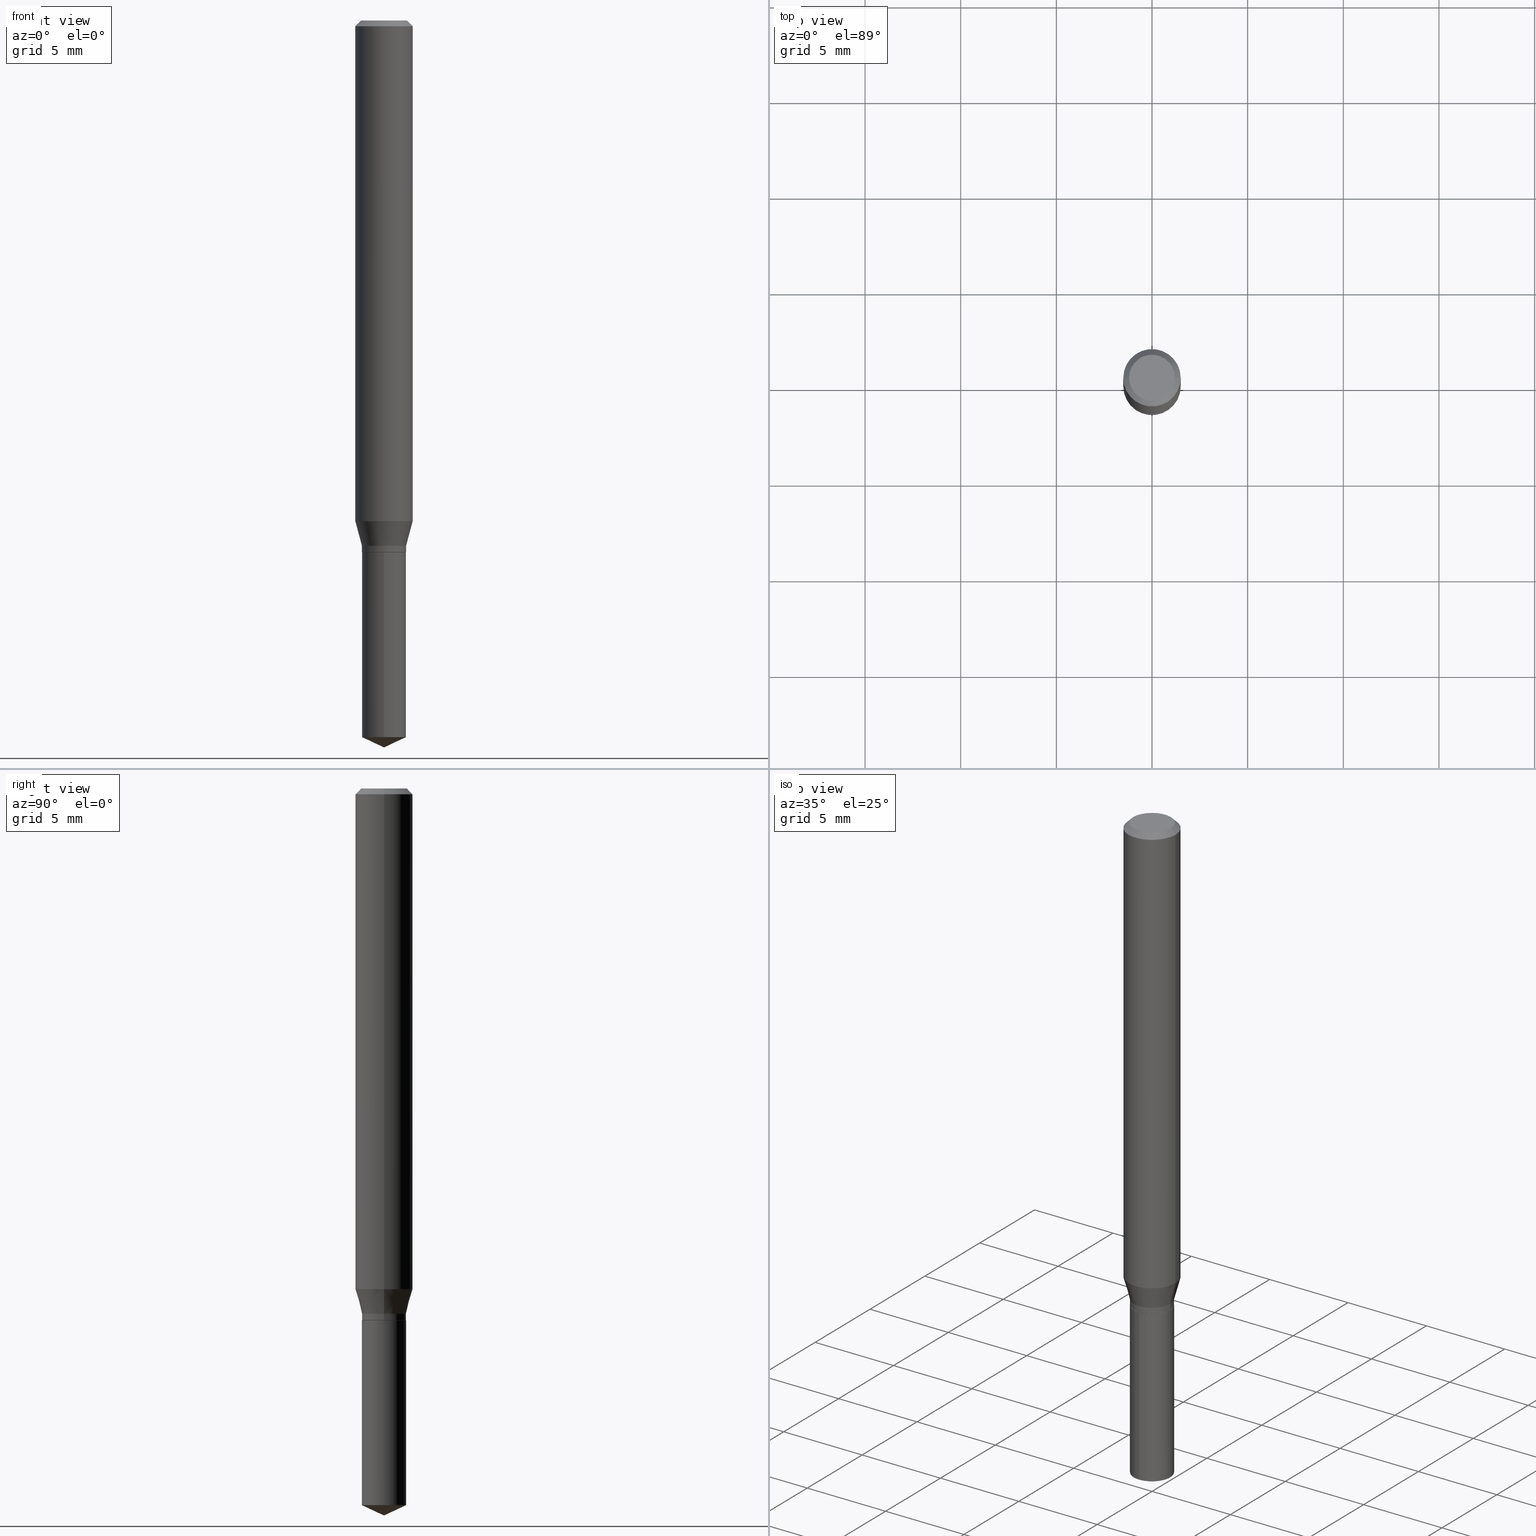
[diagram: canonical four-view strip — front | top / right | iso, engineering-drawing reading convention]
A machine part, canonical four-view strip (front | top / right | iso — engineering-drawing reading convention). The complete STEP part file that produces these views, byte-faithful:
ISO-10303-21;
HEADER;
FILE_DESCRIPTION (( 'STEP AP203' ),
    '1' );
FILE_NAME ('07638.STEP',
    '2024-04-24T00:11:10',
    ( '' ),
    ( '' ),
    'SwSTEP 2.0',
    'SolidWorks 2023',
    '' );
FILE_SCHEMA (( 'CONFIG_CONTROL_DESIGN' ));
ENDSEC;

DATA;
#1 = CARTESIAN_POINT ( 'NONE',  ( 0.04544999999999998347, -4.137056238395241663E-15, -1.093999999999999861 ) ) ;
#2 = CARTESIAN_POINT ( 'NONE',  ( -0.05905000000000011628, -3.177153447485933561E-15, -1.030144109017062881 ) ) ;
#3 = ORIENTED_EDGE ( 'NONE', *, *, #233, .F. ) ;
#4 = APPROVAL_ROLE ( '' ) ;
#5 = CARTESIAN_POINT ( 'NONE',  ( -3.173756537008140153E-16, -0.04545000000000382068, -1.094499999999999806 ) ) ;
#6 = APPLICATION_CONTEXT ( 'configuration controlled 3d designs of mechanical parts and assemblies' ) ;
#7 = DATE_AND_TIME ( #42, #314 ) ;
#8 = EDGE_LOOP ( 'NONE', ( #336, #149, #215, #461 ) ) ;
#9 = VECTOR ( 'NONE', #386, 39.37007874015747433 ) ;
#10 = CYLINDRICAL_SURFACE ( 'NONE', #53, 0.05905000000000006077 ) ;
#11 = AXIS2_PLACEMENT_3D ( 'NONE', #29, #37, #184 ) ;
#12 = ADVANCED_FACE ( 'NONE', ( #33 ), #471, .T. ) ;
#13 = CARTESIAN_POINT ( 'NONE',  ( 0.05905000000000011628, -4.009072879069648763E-15, -1.030144109017062881 ) ) ;
#14 = ORIENTED_EDGE ( 'NONE', *, *, #414, .F. ) ;
#15 = CARTESIAN_POINT ( 'NONE',  ( 0.05904999999999999832, -4.535783407291118600E-16, -0.01181000000000007738 ) ) ;
#16 = DIRECTION ( 'NONE',  ( 1.000000000000000000, -6.982962677686266711E-15, 0.000000000000000000 ) ) ;
#17 = EDGE_CURVE ( 'NONE', #441, #20, #75, .T. ) ;
#18 = DIRECTION ( 'NONE',  ( 2.445468806185136597E-29, -3.491481338843145583E-15, -1.000000000000000000 ) ) ;
#19 = AXIS2_PLACEMENT_3D ( 'NONE', #304, #379, #269 ) ;
#20 = VERTEX_POINT ( 'NONE', #123 ) ;
#21 = ADVANCED_FACE ( 'NONE', ( #421 ), #127, .T. ) ;
#22 = ORIENTED_EDGE ( 'NONE', *, *, #233, .T. ) ;
#23 = DIRECTION ( 'NONE',  ( -6.982962677686265133E-15, -1.000000000000000000, 3.005333326363326041E-15 ) ) ;
#24 = EDGE_LOOP ( 'NONE', ( #367, #253, #290, #362 ) ) ;
#25 = CARTESIAN_POINT ( 'NONE',  ( 2.676565608369631794E-29, -3.821426325363822773E-15, -1.094499999999999806 ) ) ;
#26 = AXIS2_PLACEMENT_3D ( 'NONE', #395, #356, #134 ) ;
#27 = ORIENTED_EDGE ( 'NONE', *, *, #445, .F. ) ;
#28 = CIRCLE ( 'NONE', #43, 0.04724000000000000421 ) ;
#29 = CARTESIAN_POINT ( 'NONE',  ( -9.261924752013118283E-28, 1.322368428517963298E-13, 37.87397874015748300 ) ) ;
#30 = PRODUCT_DEFINITION_SHAPE ( 'NONE', 'NONE',  #81 ) ;
#31 = ORIENTED_EDGE ( 'NONE', *, *, #112, .F. ) ;
#32 = ORIENTED_EDGE ( 'NONE', *, *, #247, .F. ) ;
#33 = FACE_OUTER_BOUND ( 'NONE', #416, .T. ) ;
#34 = AXIS2_PLACEMENT_3D ( 'NONE', #485, #301, #447 ) ;
#35 = CIRCLE ( 'NONE', #467, 0.04544999999999999735 ) ;
#36 = DIRECTION ( 'NONE',  ( 1.000000000000000000, -6.982962677686265922E-15, 0.000000000000000000 ) ) ;
#37 = DIRECTION ( 'NONE',  ( -2.445458899330790108E-29, 3.491495526022433205E-15, 1.000000000000000000 ) ) ;
#38 = DIRECTION ( 'NONE',  ( 6.982962677686265922E-15, 1.000000000000000000, -3.491495526022433599E-15 ) ) ;
#39 = DIRECTION ( 'NONE',  ( -6.982962677686265133E-15, -1.000000000000000000, 6.010666652726652082E-15 ) ) ;
#40 = CARTESIAN_POINT ( 'NONE',  ( -0.04544999999999998347, -3.473869708522012529E-15, -1.093999999999999861 ) ) ;
#41 = ADVANCED_FACE ( 'NONE', ( #444 ), #265, .T. ) ;
#42 = CALENDAR_DATE ( 2024, 23, 4 ) ;
#43 = AXIS2_PLACEMENT_3D ( 'NONE', #439, #331, #227 ) ;
#44 = PERSON ( 'UNSPECIFIED', 'UNSPECIFIED', 'UNSPECIFIED', ('UNSPECIFIED'), ('UNSPECIFIED'), ('UNSPECIFIED') ) ;
#45 = DIRECTION ( 'NONE',  ( 1.000000000000000000, -6.982962677686271444E-15, 0.000000000000000000 ) ) ;
#46 = PERSON_AND_ORGANIZATION ( #44, #354 ) ;
#47 = DIRECTION ( 'NONE',  ( -6.982962677686266711E-15, -1.000000000000000000, 3.520397390770446770E-15 ) ) ;
#48 = DATE_AND_TIME ( #387, #102 ) ;
#49 = CARTESIAN_POINT ( 'NONE',  ( -3.173756537008046476E-16, -0.04545000000000514601, -1.474906316936855033 ) ) ;
#50 = EDGE_CURVE ( 'NONE', #326, #310, #270, .T. ) ;
#51 = DIRECTION ( 'NONE',  ( -1.000000000000000000, 6.982962677686266711E-15, 0.000000000000000000 ) ) ;
#52 = AXIS2_PLACEMENT_3D ( 'NONE', #260, #408, #67 ) ;
#53 = AXIS2_PLACEMENT_3D ( 'NONE', #239, #394, #94 ) ;
#54 = CYLINDRICAL_SURFACE ( 'NONE', #128, 0.04544999999999996959 ) ;
#55 = PERSON_AND_ORGANIZATION_ROLE ( 'design_owner' ) ;
#56 = DIRECTION ( 'NONE',  ( 1.000000000000000000, -6.982962677686271444E-15, 0.000000000000000000 ) ) ;
#57 = ORIENTED_EDGE ( 'NONE', *, *, #335, .T. ) ;
#58 = AXIS2_PLACEMENT_3D ( 'NONE', #210, #429, #313 ) ;
#59 = AXIS2_PLACEMENT_3D ( 'NONE', #411, #340, #155 ) ;
#60 = ORIENTED_EDGE ( 'NONE', *, *, #115, .T. ) ;
#61 = VERTEX_POINT ( 'NONE', #341 ) ;
#62 = ORIENTED_EDGE ( 'NONE', *, *, #222, .F. ) ;
#63 = CARTESIAN_POINT ( 'NONE',  ( 0.000000000000000000, 0.000000000000000000, 0.000000000000000000 ) ) ;
#64 = ORIENTED_EDGE ( 'NONE', *, *, #297, .T. ) ;
#65 = APPROVAL_PERSON_ORGANIZATION ( #460, #355, #234 ) ;
#66 = ORIENTED_EDGE ( 'NONE', *, *, #258, .T. ) ;
#67 = DIRECTION ( 'NONE',  ( -6.982962677686265133E-15, -1.000000000000000000, 3.005333326363326041E-15 ) ) ;
#68 = ADVANCED_FACE ( 'NONE', ( #114 ), #162, .T. ) ;
#69 = CYLINDRICAL_SURFACE ( 'NONE', #306, 0.05905000000000006077 ) ;
#70 = DIRECTION ( 'NONE',  ( 2.445458899330789267E-29, -3.491495526022433599E-15, -1.000000000000000000 ) ) ;
#71 = VECTOR ( 'NONE', #307, 39.37007874015748143 ) ;
#72 = DIRECTION ( 'NONE',  ( -0.2588190451025214611, 5.211531920934551042E-15, 0.9659258262890682012 ) ) ;
#73 = CIRCLE ( 'NONE', #365, 0.04544999999999999735 ) ;
#74 = CC_DESIGN_PERSON_AND_ORGANIZATION_ASSIGNMENT ( #46, #311, ( #119 ) ) ;
#75 = LINE ( 'NONE', #452, #175 ) ;
#76 = LINE ( 'NONE', #446, #360 ) ;
#77 = CARTESIAN_POINT ( 'NONE',  ( 0.05904999999999999832, -4.463468013801467941E-16, -0.01181000000000007738 ) ) ;
#78 = EDGE_CURVE ( 'NONE', #441, #322, #211, .T. ) ;
#79 = DIRECTION ( 'NONE',  ( -2.445468806185136877E-29, 3.491481338843145188E-15, 1.000000000000000000 ) ) ;
#80 = APPROVAL_DATE_TIME ( #83, #216 ) ;
#81 = PRODUCT_DEFINITION ( 'UNKNOWN', '', #119, #99 ) ;
#82 = ORIENTED_EDGE ( 'NONE', *, *, #376, .F. ) ;
#83 = DATE_AND_TIME ( #420, #176 ) ;
#84 = AXIS2_PLACEMENT_3D ( 'NONE', #194, #377, #191 ) ;
#85 = VECTOR ( 'NONE', #264, 39.37007874015748143 ) ;
#86 = FACE_OUTER_BOUND ( 'NONE', #183, .T. ) ;
#87 = CARTESIAN_POINT ( 'NONE',  ( 2.888098660104665518E-31, -4.123439461173782112E-17, -0.01181000000000007738 ) ) ;
#88 = COORDINATED_UNIVERSAL_TIME_OFFSET ( 5, 0, .BEHIND. ) ;
#89 = CARTESIAN_POINT ( 'NONE',  ( 2.888098660104665518E-31, -4.123439461173782112E-17, -0.01181000000000007738 ) ) ;
#90 = DIRECTION ( 'NONE',  ( 2.438088387897960049E-29, -3.491481338843145188E-15, -1.000000000000000000 ) ) ;
#91 = AXIS2_PLACEMENT_3D ( 'NONE', #125, #165, #56 ) ;
#92 = AXIS2_PLACEMENT_3D ( 'NONE', #192, #478, #363 ) ;
#93 = FACE_OUTER_BOUND ( 'NONE', #179, .T. ) ;
#94 = DIRECTION ( 'NONE',  ( 1.000000000000000000, -6.982962677686266711E-15, 4.876176775795935793E-29 ) ) ;
#95 = ORIENTED_EDGE ( 'NONE', *, *, #78, .F. ) ;
#96 = CARTESIAN_POINT ( 'NONE',  ( 2.519185284476607482E-29, -3.596728932952273843E-15, -1.030144109017062881 ) ) ;
#97 = EDGE_CURVE ( 'NONE', #293, #61, #256, .T. ) ;
#98 = VERTEX_POINT ( 'NONE', #40 ) ;
#99 = DESIGN_CONTEXT ( 'detailed design', #6, 'design' ) ;
#100 =( LENGTH_UNIT ( ) NAMED_UNIT ( * ) SI_UNIT ( $, .METRE. ) );
#101 = AXIS2_PLACEMENT_3D ( 'NONE', #89, #18, #51 ) ;
#102 = LOCAL_TIME ( 20, 11, 10.00000000000000000, #126 ) ;
#103 = ORIENTED_EDGE ( 'NONE', *, *, #50, .T. ) ;
#104 = ADVANCED_FACE ( 'NONE', ( #483 ), #262, .F. ) ;
#105 = ORIENTED_EDGE ( 'NONE', *, *, #273, .F. ) ;
#106 =( NAMED_UNIT ( * ) PLANE_ANGLE_UNIT ( ) SI_UNIT ( $, .RADIAN. ) );
#107 = ADVANCED_FACE ( 'NONE', ( #224 ), #374, .T. ) ;
#108 = ORIENTED_EDGE ( 'NONE', *, *, #424, .T. ) ;
#109 = AXIS2_PLACEMENT_3D ( 'NONE', #267, #230, #45 ) ;
#110 = EDGE_LOOP ( 'NONE', ( #328, #396, #438, #468 ) ) ;
#111 = AXIS2_PLACEMENT_3D ( 'NONE', #225, #375, #141 ) ;
#112 = EDGE_CURVE ( 'NONE', #98, #133, #181, .T. ) ;
#113 = ORIENTED_EDGE ( 'NONE', *, *, #97, .F. ) ;
#114 = FACE_OUTER_BOUND ( 'NONE', #443, .T. ) ;
#115 = EDGE_CURVE ( 'NONE', #287, #20, #195, .T. ) ;
#116 = DIRECTION ( 'NONE',  ( 6.439704144417031142E-15, 0.9063077870366524902, 0.4226182617406940567 ) ) ;
#117 = EDGE_LOOP ( 'NONE', ( #361, #358 ) ) ;
#118 = CARTESIAN_POINT ( 'NONE',  ( 2.676565608369631794E-29, -3.821426325363822773E-15, -1.094499999999999806 ) ) ;
#119 = PRODUCT_DEFINITION_FORMATION_WITH_SPECIFIED_SOURCE ( 'ANY', '', #186, .NOT_KNOWN. ) ;
#120 = CARTESIAN_POINT ( 'NONE',  ( 0.04724000000000000421, -3.852183633974369838E-16, -3.380025165621689721E-19 ) ) ;
#121 = CARTESIAN_POINT ( 'NONE',  ( 0.05905000000000006077, -4.123439461173744764E-16, 2.879382386107503023E-30 ) ) ;
#122 = APPROVAL_DATE_TIME ( #7, #355 ) ;
#123 = CARTESIAN_POINT ( 'NONE',  ( -0.05904999999999999832, -1.399406178315665504E-15, -0.01181000000000007738 ) ) ;
#124 = DATE_AND_TIME ( #309, #266 ) ;
#125 = CARTESIAN_POINT ( 'NONE',  ( 2.676565608369631794E-29, -3.821426325363822773E-15, -1.094499999999999806 ) ) ;
#126 = COORDINATED_UNIVERSAL_TIME_OFFSET ( 5, 0, .BEHIND. ) ;
#127 = CONICAL_SURFACE ( 'NONE', #109, 0.04494999999999999690, 0.7853981633973970977 ) ;
#128 = AXIS2_PLACEMENT_3D ( 'NONE', #357, #170, #317 ) ;
#129 = CC_DESIGN_APPROVAL ( #355, ( #81 ) ) ;
#130 = DIRECTION ( 'NONE',  ( -2.445468806185136877E-29, 3.491481338843145188E-15, 1.000000000000000000 ) ) ;
#131 = EDGE_CURVE ( 'NONE', #153, #350, #451, .T. ) ;
#132 = APPLICATION_PROTOCOL_DEFINITION ( 'international standard', 'config_control_design', 1994, #6 ) ;
#133 = VERTEX_POINT ( 'NONE', #1 ) ;
#134 = DIRECTION ( 'NONE',  ( 1.000000000000000000, -6.982962677686271444E-15, 0.000000000000000000 ) ) ;
#135 = CC_DESIGN_PERSON_AND_ORGANIZATION_ASSIGNMENT ( #464, #166, ( #235 ) ) ;
#136 = FACE_OUTER_BOUND ( 'NONE', #110, .T. ) ;
#137 = VECTOR ( 'NONE', #277, 39.37007874015748143 ) ;
#138 = FACE_OUTER_BOUND ( 'NONE', #246, .T. ) ;
#139 = EDGE_CURVE ( 'NONE', #293, #98, #160, .T. ) ;
#140 = ORIENTED_EDGE ( 'NONE', *, *, #279, .T. ) ;
#141 = DIRECTION ( 'NONE',  ( 1.000000000000000000, -6.982962677686266711E-15, 0.000000000000000000 ) ) ;
#142 = EDGE_LOOP ( 'NONE', ( #82, #217, #66, #27 ) ) ;
#143 = CC_DESIGN_DATE_AND_TIME_ASSIGNMENT ( #271, #242, ( #81 ) ) ;
#144 = CARTESIAN_POINT ( 'NONE',  ( 2.676565608369631794E-29, -3.821426325363822773E-15, -1.094499999999999806 ) ) ;
#145 = ORIENTED_EDGE ( 'NONE', *, *, #297, .F. ) ;
#146 = DIRECTION ( 'NONE',  ( -2.445468806185136877E-29, 3.491481338843145188E-15, 1.000000000000000000 ) ) ;
#147 = EDGE_LOOP ( 'NONE', ( #145, #95, #476, #296 ) ) ;
#148 = VECTOR ( 'NONE', #369, 39.37007874015748143 ) ;
#149 = ORIENTED_EDGE ( 'NONE', *, *, #139, .T. ) ;
#150 = AXIS2_PLACEMENT_3D ( 'NONE', #373, #337, #484 ) ;
#151 = DIRECTION ( 'NONE',  ( -2.445468806185136597E-29, 3.491481338843145583E-15, 1.000000000000000000 ) ) ;
#152 = CARTESIAN_POINT ( 'NONE',  ( -0.04494999999999999690, -3.499388138465546216E-15, -1.094499999999999806 ) ) ;
#153 = VERTEX_POINT ( 'NONE', #13 ) ;
#154 = ADVANCED_FACE ( 'NONE', ( #209 ), #305, .T. ) ;
#155 = DIRECTION ( 'NONE',  ( 1.000000000000000000, -6.982962677686265922E-15, 0.000000000000000000 ) ) ;
#156 = DIRECTION ( 'NONE',  ( -2.445468806185136597E-29, 3.491481338843145583E-15, 1.000000000000000000 ) ) ;
#157 = AXIS2_PLACEMENT_3D ( 'NONE', #487, #156, #345 ) ;
#158 = PERSON_AND_ORGANIZATION ( #44, #354 ) ;
#159 = CIRCLE ( 'NONE', #59, 0.04544999999999996959 ) ;
#160 = LINE ( 'NONE', #381, #481 ) ;
#161 = APPROVAL_STATUS ( 'not_yet_approved' ) ;
#162 = CYLINDRICAL_SURFACE ( 'NONE', #52, 0.04544999999999999735 ) ;
#163 = APPROVAL_STATUS ( 'not_yet_approved' ) ;
#164 = EDGE_CURVE ( 'NONE', #347, #326, #431, .T. ) ;
#165 = DIRECTION ( 'NONE',  ( -2.445468806185136597E-29, 3.491481338843145583E-15, 1.000000000000000000 ) ) ;
#166 = PERSON_AND_ORGANIZATION_ROLE ( 'classification_officer' ) ;
#167 = AXIS2_PLACEMENT_3D ( 'NONE', #282, #90, #172 ) ;
#168 = CC_DESIGN_SECURITY_CLASSIFICATION ( #235, ( #119 ) ) ;
#169 = EDGE_CURVE ( 'NONE', #20, #350, #334, .T. ) ;
#170 = DIRECTION ( 'NONE',  ( -2.445468806185136597E-29, 3.491481338843145583E-15, 1.000000000000000000 ) ) ;
#171 = COORDINATED_UNIVERSAL_TIME_OFFSET ( 5, 0, .BEHIND. ) ;
#172 = DIRECTION ( 'NONE',  ( -1.000000000000000000, 6.982962677686265922E-15, -4.876176775795935793E-29 ) ) ;
#173 = ADVANCED_FACE ( 'NONE', ( #432 ), #244, .F. ) ;
#174 = LINE ( 'NONE', #5, #288 ) ;
#175 = VECTOR ( 'NONE', #229, 39.37007874015748143 ) ;
#176 = LOCAL_TIME ( 20, 11, 10.00000000000000000, #88 ) ;
#177 = ORIENTED_EDGE ( 'NONE', *, *, #445, .T. ) ;
#178 = ADVANCED_FACE ( 'NONE', ( #136 ), #54, .T. ) ;
#179 = EDGE_LOOP ( 'NONE', ( #14, #64, #479, #259 ) ) ;
#180 =( CONVERSION_BASED_UNIT ( 'INCH', #213 ) LENGTH_UNIT ( ) NAMED_UNIT ( #236 ) );
#181 = CIRCLE ( 'NONE', #157, 0.04544999999999998347 ) ;
#182 = APPLICATION_CONTEXT ( 'configuration controlled 3d designs of mechanical parts and assemblies' ) ;
#183 = EDGE_LOOP ( 'NONE', ( #473, #57, #219, #470 ) ) ;
#184 = DIRECTION ( 'NONE',  ( -6.982962677686266711E-15, -1.000000000000000000, 3.520397390770446770E-15 ) ) ;
#185 = ORIENTED_EDGE ( 'NONE', *, *, #458, .F. ) ;
#186 = PRODUCT ( '07638', '07638', '', ( #348 ) ) ;
#187 = ORIENTED_EDGE ( 'NONE', *, *, #380, .T. ) ;
#188 = APPROVAL_PERSON_ORGANIZATION ( #393, #216, #4 ) ;
#189 = DIRECTION ( 'NONE',  ( -2.445468806185136597E-29, 3.491481338843145583E-15, 1.000000000000000000 ) ) ;
#190 = LOCAL_TIME ( 20, 11, 10.00000000000000000, #315 ) ;
#191 = DIRECTION ( 'NONE',  ( 1.000000000000000000, -6.982962677686271444E-15, 0.000000000000000000 ) ) ;
#192 = CARTESIAN_POINT ( 'NONE',  ( 2.643307232605514096E-29, -3.773942179155556299E-15, -1.080899999999999972 ) ) ;
#193 = APPROVAL ( #319, 'UNSPECIFIED' ) ;
#194 = CARTESIAN_POINT ( 'NONE',  ( 2.676565608369631794E-29, -3.821426325363822773E-15, -1.094499999999999806 ) ) ;
#195 = LINE ( 'NONE', #419, #71 ) ;
#196 = AXIS2_PLACEMENT_3D ( 'NONE', #284, #274, #47 ) ;
#197 = DIRECTION ( 'NONE',  ( 0.000000000000000000, 0.000000000000000000, 1.000000000000000000 ) ) ;
#198 = DIRECTION ( 'NONE',  ( -2.445468806185136597E-29, 3.491481338843145583E-15, 1.000000000000000000 ) ) ;
#199 = DIRECTION ( 'NONE',  ( -2.445468806185136597E-29, 3.491481338843145583E-15, 1.000000000000000000 ) ) ;
#200 = DIRECTION ( 'NONE',  ( 1.000000000000000000, 0.000000000000000000, 0.000000000000000000 ) ) ;
#201 = ADVANCED_FACE ( 'NONE', ( #93 ), #312, .T. ) ;
#202 = CARTESIAN_POINT ( 'NONE',  ( 2.888098660104665518E-31, -4.123439461173782112E-17, -0.01181000000000007738 ) ) ;
#203 = DATE_TIME_ROLE ( 'classification_date' ) ;
#204 = ORIENTED_EDGE ( 'NONE', *, *, #97, .T. ) ;
#205 = CC_DESIGN_DATE_AND_TIME_ASSIGNMENT ( #124, #203, ( #235 ) ) ;
#206 = CARTESIAN_POINT ( 'NONE',  ( 3.658651059288795076E-29, -5.223626456482161457E-15, -1.496099999999999985 ) ) ;
#207 = SECURITY_CLASSIFICATION_LEVEL ( 'unclassified' ) ;
#208 = CIRCLE ( 'NONE', #329, 0.05904999999999999832 ) ;
#209 = FACE_OUTER_BOUND ( 'NONE', #8, .T. ) ;
#210 = CARTESIAN_POINT ( 'NONE',  ( 3.606833621484513681E-29, -5.149613279019524657E-15, -1.474906316936855477 ) ) ;
#211 = CIRCLE ( 'NONE', #232, 0.04724000000000000421 ) ;
#212 = ORIENTED_EDGE ( 'NONE', *, *, #380, .F. ) ;
#213 = LENGTH_MEASURE_WITH_UNIT ( LENGTH_MEASURE( 0.02539999999999999897 ), #100 );
#214 = EDGE_CURVE ( 'NONE', #480, #347, #463, .T. ) ;
#215 = ORIENTED_EDGE ( 'NONE', *, *, #291, .F. ) ;
#216 = APPROVAL ( #161, 'UNSPECIFIED' ) ;
#217 = ORIENTED_EDGE ( 'NONE', *, *, #112, .T. ) ;
#218 = CARTESIAN_POINT ( 'NONE',  ( -0.04724000000000000421, 3.504923541997677355E-16, -3.380025165670481712E-19 ) ) ;
#219 = ORIENTED_EDGE ( 'NONE', *, *, #131, .T. ) ;
#220 = ORIENTED_EDGE ( 'NONE', *, *, #131, .F. ) ;
#221 = DIRECTION ( 'NONE',  ( 1.000000000000000000, -6.982962677686265922E-15, 0.000000000000000000 ) ) ;
#222 = EDGE_CURVE ( 'NONE', #61, #293, #223, .T. ) ;
#223 = CIRCLE ( 'NONE', #26, 0.04494999999999999690 ) ;
#224 = FACE_OUTER_BOUND ( 'NONE', #142, .T. ) ;
#225 = CARTESIAN_POINT ( 'NONE',  ( 2.519185284476607482E-29, -3.596728932952273843E-15, -1.030144109017062881 ) ) ;
#226 = CARTESIAN_POINT ( 'NONE',  ( 8.265746106709734507E-48, -1.180129479067563789E-33, -3.380025165646692144E-19 ) ) ;
#227 = DIRECTION ( 'NONE',  ( 1.000000000000000000, -6.982962677686266711E-15, 4.876185090822587894E-29 ) ) ;
#228 = CARTESIAN_POINT ( 'NONE',  ( 3.229416734030016060E-16, 0.04544999999999484175, -1.474906316936855699 ) ) ;
#229 = DIRECTION ( 'NONE',  ( -0.7071067811865451302, 2.468850131082231817E-15, -0.7071067811865499042 ) ) ;
#230 = DIRECTION ( 'NONE',  ( -2.445468806185136597E-29, 3.491481338843145583E-15, 1.000000000000000000 ) ) ;
#231 = ADVANCED_BREP_SHAPE_REPRESENTATION ( '07638', ( #261, #412, #283 ), #382 ) ;
#232 = AXIS2_PLACEMENT_3D ( 'NONE', #226, #189, #339 ) ;
#233 = EDGE_CURVE ( 'NONE', #330, #153, #280, .T. ) ;
#234 = APPROVAL_ROLE ( '' ) ;
#235 = SECURITY_CLASSIFICATION ( '', '', #207 ) ;
#236 = DIMENSIONAL_EXPONENTS ( 1.000000000000000000, 0.000000000000000000, 0.000000000000000000, 0.000000000000000000, 0.000000000000000000, 0.000000000000000000, 0.000000000000000000 ) ;
#237 = DIRECTION ( 'NONE',  ( -2.445458899330790108E-29, 3.491495526022433599E-15, 1.000000000000000000 ) ) ;
#238 = PERSON_AND_ORGANIZATION_ROLE ( 'creator' ) ;
#239 = CARTESIAN_POINT ( 'NONE',  ( 0.000000000000000000, 0.000000000000000000, 0.000000000000000000 ) ) ;
#240 = DIRECTION ( 'NONE',  ( -2.445458899330790108E-29, 3.491495526022433205E-15, 1.000000000000000000 ) ) ;
#241 = CYLINDRICAL_SURFACE ( 'NONE', #406, 0.04544999999999999735 ) ;
#242 = DATE_TIME_ROLE ( 'creation_date' ) ;
#243 = CARTESIAN_POINT ( 'NONE',  ( 0.04544999999999996959, -4.091317832856396691E-15, -1.080899999999999972 ) ) ;
#244 = PLANE ( 'NONE',  #167 ) ;
#245 = ORIENTED_EDGE ( 'NONE', *, *, #469, .F. ) ;
#246 = EDGE_LOOP ( 'NONE', ( #316, #454, #245 ) ) ;
#247 = EDGE_CURVE ( 'NONE', #347, #364, #174, .T. ) ;
#248 = AXIS2_PLACEMENT_3D ( 'NONE', #410, #70, #38 ) ;
#249 = APPROVAL_PERSON_ORGANIZATION ( #158, #193, #455 ) ;
#250 = PLANE ( 'NONE',  #482 ) ;
#251 = ORIENTED_EDGE ( 'NONE', *, *, #351, .T. ) ;
#252 = ADVANCED_FACE ( 'NONE', ( #323 ), #241, .T. ) ;
#253 = ORIENTED_EDGE ( 'NONE', *, *, #469, .T. ) ;
#254 = ADVANCED_FACE ( 'NONE', ( #138 ), #489, .T. ) ;
#255 = ORIENTED_EDGE ( 'NONE', *, *, #477, .T. ) ;
#256 = CIRCLE ( 'NONE', #84, 0.04494999999999999690 ) ;
#257 = CIRCLE ( 'NONE', #150, 0.04544999999999998347 ) ;
#258 = EDGE_CURVE ( 'NONE', #133, #330, #423, .T. ) ;
#259 = ORIENTED_EDGE ( 'NONE', *, *, #17, .F. ) ;
#260 = CARTESIAN_POINT ( 'NONE',  ( 2.676565608369631794E-29, -3.821426325363822773E-15, -1.094499999999999806 ) ) ;
#261 = MANIFOLD_SOLID_BREP ( 'Body-Move/Copy2[1]', #352 ) ;
#262 = PLANE ( 'NONE',  #248 ) ;
#263 = CARTESIAN_POINT ( 'NONE',  ( 3.606833621484513681E-29, -5.149613279019524657E-15, -1.474906316936855477 ) ) ;
#264 = DIRECTION ( 'NONE',  ( 0.7071067811865451302, -7.319954787623248157E-15, -0.7071067811865499042 ) ) ;
#265 = CONICAL_SURFACE ( 'NONE', #422, 0.04544999999999996959, 0.2617993877991501295 ) ;
#266 = LOCAL_TIME ( 20, 11, 10.00000000000000000, #425 ) ;
#267 = CARTESIAN_POINT ( 'NONE',  ( 2.676565608369631794E-29, -3.821426325363822773E-15, -1.094499999999999806 ) ) ;
#268 = DIRECTION ( 'NONE',  ( -2.445458899330790108E-29, 3.491495526022433205E-15, 1.000000000000000000 ) ) ;
#269 = DIRECTION ( 'NONE',  ( -1.000000000000000000, 6.982962677686266711E-15, 0.000000000000000000 ) ) ;
#270 = LINE ( 'NONE', #298, #148 ) ;
#271 = DATE_AND_TIME ( #453, #190 ) ;
#272 = CARTESIAN_POINT ( 'NONE',  ( 2.643307232605514096E-29, -3.773942179155556299E-15, -1.080899999999999972 ) ) ;
#273 = EDGE_CURVE ( 'NONE', #350, #20, #208, .T. ) ;
#274 = DIRECTION ( 'NONE',  ( -2.445458899330790108E-29, 3.491495526022433205E-15, 1.000000000000000000 ) ) ;
#275 = SHAPE_DEFINITION_REPRESENTATION ( #30, #231 ) ;
#276 = VECTOR ( 'NONE', #116, 39.37007874015748143 ) ;
#277 = DIRECTION ( 'NONE',  ( 0.7071067811865112684, -2.468850131081876830E-15, 0.7071067811865837660 ) ) ;
#278 = DIRECTION ( 'NONE',  ( -2.445468806185136597E-29, 3.491481338843145583E-15, 1.000000000000000000 ) ) ;
#279 = EDGE_CURVE ( 'NONE', #61, #133, #389, .T. ) ;
#280 = LINE ( 'NONE', #349, #9 ) ;
#281 = PERSON_AND_ORGANIZATION_ROLE ( 'design_supplier' ) ;
#282 = CARTESIAN_POINT ( 'NONE',  ( 4.132873053354867254E-48, -5.900647395337818946E-34, -1.690012582823346072E-19 ) ) ;
#283 = AXIS2_PLACEMENT_3D ( 'NONE', #63, #197, #200 ) ;
#284 = CARTESIAN_POINT ( 'NONE',  ( -9.261924752013118283E-28, 1.322368428517963298E-13, 37.87397874015748300 ) ) ;
#285 = FACE_OUTER_BOUND ( 'NONE', #368, .T. ) ;
#286 = ADVANCED_FACE ( 'NONE', ( #86 ), #69, .T. ) ;
#287 = VERTEX_POINT ( 'NONE', #2 ) ;
#288 = VECTOR ( 'NONE', #237, 39.37007874015748143 ) ;
#289 = LINE ( 'NONE', #475, #276 ) ;
#290 = ORIENTED_EDGE ( 'NONE', *, *, #247, .T. ) ;
#291 = EDGE_CURVE ( 'NONE', #133, #98, #257, .T. ) ;
#292 = EDGE_LOOP ( 'NONE', ( #440, #401 ) ) ;
#293 = VERTEX_POINT ( 'NONE', #152 ) ;
#294 = CLOSED_SHELL ( 'NONE', ( #154, #201, #342, #12, #178, #107, #41, #286, #302, #173, #371, #21 ) ) ;
#295 = CIRCLE ( 'NONE', #437, 0.05905000000000011628 ) ;
#296 = ORIENTED_EDGE ( 'NONE', *, *, #169, .T. ) ;
#297 = EDGE_CURVE ( 'NONE', #322, #350, #300, .T. ) ;
#298 = CARTESIAN_POINT ( 'NONE',  ( 3.229416734029921890E-16, 0.04544999999999617402, -1.094500000000000028 ) ) ;
#299 = DIRECTION ( 'NONE',  ( -2.438088387897960049E-29, 3.491481338843145188E-15, 1.000000000000000000 ) ) ;
#300 = LINE ( 'NONE', #77, #85 ) ;
#301 = DIRECTION ( 'NONE',  ( -2.445468806185136597E-29, 3.491481338843145583E-15, 1.000000000000000000 ) ) ;
#302 = ADVANCED_FACE ( 'NONE', ( #415 ), #457, .T. ) ;
#303 = CARTESIAN_POINT ( 'NONE',  ( 3.658651059288794515E-29, -5.223626456482161457E-15, -1.496099999999999985 ) ) ;
#304 = CARTESIAN_POINT ( 'NONE',  ( 2.888098660104665518E-31, -4.123439461173782112E-17, -0.01181000000000007738 ) ) ;
#305 = CONICAL_SURFACE ( 'NONE', #91, 0.04494999999999999690, 0.7853981633973970977 ) ;
#306 = AXIS2_PLACEMENT_3D ( 'NONE', #490, #198, #418 ) ;
#307 = DIRECTION ( 'NONE',  ( -2.445468806185136877E-29, 3.491481338843145188E-15, 1.000000000000000000 ) ) ;
#308 = CARTESIAN_POINT ( 'NONE',  ( 2.643307232605514096E-29, -3.773942179155556299E-15, -1.080899999999999972 ) ) ;
#309 = CALENDAR_DATE ( 2024, 23, 4 ) ;
#310 = VERTEX_POINT ( 'NONE', #450 ) ;
#311 = PERSON_AND_ORGANIZATION_ROLE ( 'creator' ) ;
#312 = CONICAL_SURFACE ( 'NONE', #101, 0.05904999999999999832, 0.7853981633974449483 ) ;
#313 = DIRECTION ( 'NONE',  ( -6.982962677686265133E-15, -1.000000000000000000, 6.010666652726652082E-15 ) ) ;
#314 = LOCAL_TIME ( 20, 11, 10.00000000000000000, #171 ) ;
#315 = COORDINATED_UNIVERSAL_TIME_OFFSET ( 5, 0, .BEHIND. ) ;
#316 = ORIENTED_EDGE ( 'NONE', *, *, #424, .F. ) ;
#317 = DIRECTION ( 'NONE',  ( 1.000000000000000000, -6.982962677686267499E-15, 4.876176775795935232E-29 ) ) ;
#318 = CC_DESIGN_PERSON_AND_ORGANIZATION_ASSIGNMENT ( #384, #55, ( #186 ) ) ;
#319 = APPROVAL_STATUS ( 'not_yet_approved' ) ;
#320 = LINE ( 'NONE', #488, #400 ) ;
#321 = DIRECTION ( 'NONE',  ( -6.328713451373378056E-15, -0.9063077870366496036, 0.4226182617407003850 ) ) ;
#322 = VERTEX_POINT ( 'NONE', #120 ) ;
#323 = FACE_OUTER_BOUND ( 'NONE', #24, .T. ) ;
#324 = CIRCLE ( 'NONE', #92, 0.04544999999999996959 ) ;
#325 = ORIENTED_EDGE ( 'NONE', *, *, #351, .F. ) ;
#326 = VERTEX_POINT ( 'NONE', #228 ) ;
#327 =( NAMED_UNIT ( * ) SI_UNIT ( $, .STERADIAN. ) SOLID_ANGLE_UNIT ( ) );
#328 = ORIENTED_EDGE ( 'NONE', *, *, #291, .T. ) ;
#329 = AXIS2_PLACEMENT_3D ( 'NONE', #87, #278, #427 ) ;
#330 = VERTEX_POINT ( 'NONE', #243 ) ;
#331 = DIRECTION ( 'NONE',  ( -2.445468806185136597E-29, 3.491481338843145583E-15, 1.000000000000000000 ) ) ;
#332 = EDGE_LOOP ( 'NONE', ( #325, #177, #22, #407 ) ) ;
#333 = EDGE_LOOP ( 'NONE', ( #397, #204, #140, #31 ) ) ;
#334 = CIRCLE ( 'NONE', #370, 0.05904999999999999832 ) ;
#335 = EDGE_CURVE ( 'NONE', #287, #153, #295, .T. ) ;
#336 = ORIENTED_EDGE ( 'NONE', *, *, #222, .T. ) ;
#337 = DIRECTION ( 'NONE',  ( -2.445468806185136597E-29, 3.491481338843145583E-15, 1.000000000000000000 ) ) ;
#338 = PRODUCT_RELATED_PRODUCT_CATEGORY ( 'detail', '', ( #186 ) ) ;
#339 = DIRECTION ( 'NONE',  ( 1.000000000000000000, -6.982962677686266711E-15, 4.876185090822587894E-29 ) ) ;
#340 = DIRECTION ( 'NONE',  ( -2.445468806185136597E-29, 3.491481338843145583E-15, 1.000000000000000000 ) ) ;
#341 = CARTESIAN_POINT ( 'NONE',  ( 0.04494999999999999690, -4.135310497725820159E-15, -1.094499999999999806 ) ) ;
#342 = ADVANCED_FACE ( 'NONE', ( #462 ), #10, .T. ) ;
#343 = CARTESIAN_POINT ( 'NONE',  ( -0.04544999999999996959, -3.473869708522012529E-15, -1.080899999999999972 ) ) ;
#344 = CC_DESIGN_APPROVAL ( #216, ( #119 ) ) ;
#345 = DIRECTION ( 'NONE',  ( 1.000000000000000000, -6.982962677686264344E-15, 0.000000000000000000 ) ) ;
#346 = PERSON_AND_ORGANIZATION ( #44, #354 ) ;
#347 = VERTEX_POINT ( 'NONE', #49 ) ;
#348 = MECHANICAL_CONTEXT ( 'NONE', #182, 'mechanical' ) ;
#349 = CARTESIAN_POINT ( 'NONE',  ( 0.04544999999999996959, -4.091317832856396691E-15, -1.080899999999999972 ) ) ;
#350 = VERTEX_POINT ( 'NONE', #15 ) ;
#351 = EDGE_CURVE ( 'NONE', #436, #287, #320, .T. ) ;
#352 = CLOSED_SHELL ( 'NONE', ( #68, #391, #254, #252, #104 ) ) ;
#353 = DIRECTION ( 'NONE',  ( -0.7071067811865112684, 7.493145998870223209E-15, 0.7071067811865837660 ) ) ;
#354 = ORGANIZATION ( 'UNSPECIFIED', 'UNSPECIFIED', '' ) ;
#355 = APPROVAL ( #163, 'UNSPECIFIED' ) ;
#356 = DIRECTION ( 'NONE',  ( -2.445468806185136597E-29, 3.491481338843145583E-15, 1.000000000000000000 ) ) ;
#357 = CARTESIAN_POINT ( 'NONE',  ( 0.000000000000000000, 0.000000000000000000, 0.000000000000000000 ) ) ;
#358 = ORIENTED_EDGE ( 'NONE', *, *, #388, .T. ) ;
#359 = VECTOR ( 'NONE', #79, 39.37007874015748143 ) ;
#360 = VECTOR ( 'NONE', #146, 39.37007874015748143 ) ;
#361 = ORIENTED_EDGE ( 'NONE', *, *, #458, .T. ) ;
#362 = ORIENTED_EDGE ( 'NONE', *, *, #388, .F. ) ;
#363 = DIRECTION ( 'NONE',  ( 1.000000000000000000, -6.982962677686265922E-15, 0.000000000000000000 ) ) ;
#364 = VERTEX_POINT ( 'NONE', #417 ) ;
#365 = AXIS2_PLACEMENT_3D ( 'NONE', #263, #268, #39 ) ;
#366 = DIRECTION ( 'NONE',  ( 1.000000000000000000, -6.982962677686265922E-15, 4.876176775795935793E-29 ) ) ;
#367 = ORIENTED_EDGE ( 'NONE', *, *, #50, .F. ) ;
#368 = EDGE_LOOP ( 'NONE', ( #383, #108, #398 ) ) ;
#369 = DIRECTION ( 'NONE',  ( -2.445458899330790108E-29, 3.491495526022433599E-15, 1.000000000000000000 ) ) ;
#370 = AXIS2_PLACEMENT_3D ( 'NONE', #202, #465, #16 ) ;
#371 = ADVANCED_FACE ( 'NONE', ( #448 ), #250, .F. ) ;
#372 = CC_DESIGN_APPROVAL ( #193, ( #235 ) ) ;
#373 = CARTESIAN_POINT ( 'NONE',  ( 2.675342873966538993E-29, -3.819680584694400481E-15, -1.093999999999999861 ) ) ;
#374 = CYLINDRICAL_SURFACE ( 'NONE', #34, 0.04544999999999996959 ) ;
#375 = DIRECTION ( 'NONE',  ( -2.445468806185136597E-29, 3.491481338843145583E-15, 1.000000000000000000 ) ) ;
#376 = EDGE_CURVE ( 'NONE', #98, #436, #76, .T. ) ;
#377 = DIRECTION ( 'NONE',  ( -2.445468806185136597E-29, 3.491481338843145583E-15, 1.000000000000000000 ) ) ;
#378 = DIRECTION ( 'NONE',  ( -6.982962677686265133E-15, -1.000000000000000000, 3.005333326363326041E-15 ) ) ;
#379 = DIRECTION ( 'NONE',  ( 2.445468806185136597E-29, -3.491481338843145583E-15, -1.000000000000000000 ) ) ;
#380 = EDGE_CURVE ( 'NONE', #153, #287, #442, .T. ) ;
#381 = CARTESIAN_POINT ( 'NONE',  ( -0.04494999999999999690, -3.502037365639657417E-15, -1.094499999999999806 ) ) ;
#382 =( GEOMETRIC_REPRESENTATION_CONTEXT ( 3 ) GLOBAL_UNCERTAINTY_ASSIGNED_CONTEXT ( ( #390 ) ) GLOBAL_UNIT_ASSIGNED_CONTEXT ( ( #180, #106, #327 ) ) REPRESENTATION_CONTEXT ( 'NONE', 'WORKASPACE' ) );
#383 = ORIENTED_EDGE ( 'NONE', *, *, #214, .F. ) ;
#384 = PERSON_AND_ORGANIZATION ( #44, #354 ) ;
#385 = CARTESIAN_POINT ( 'NONE',  ( 0.04494999999999999690, -4.135310497725820159E-15, -1.094499999999999806 ) ) ;
#386 = DIRECTION ( 'NONE',  ( 0.2588190451025214611, 1.565188264969621573E-15, 0.9659258262890682012 ) ) ;
#387 = CALENDAR_DATE ( 2024, 23, 4 ) ;
#388 = EDGE_CURVE ( 'NONE', #310, #364, #433, .T. ) ;
#389 = LINE ( 'NONE', #385, #137 ) ;
#390 = UNCERTAINTY_MEASURE_WITH_UNIT (LENGTH_MEASURE( 1.000000000000000082E-05 ), #180, 'distance_accuracy_value', 'NONE');
#391 = ADVANCED_FACE ( 'NONE', ( #285 ), #474, .T. ) ;
#392 = CARTESIAN_POINT ( 'NONE',  ( 2.676565608369631794E-29, -3.821426325363822773E-15, -1.094499999999999806 ) ) ;
#393 = PERSON_AND_ORGANIZATION ( #44, #354 ) ;
#394 = DIRECTION ( 'NONE',  ( -2.445468806185136597E-29, 3.491481338843145583E-15, 1.000000000000000000 ) ) ;
#395 = CARTESIAN_POINT ( 'NONE',  ( 2.676565608369631794E-29, -3.821426325363822773E-15, -1.094499999999999806 ) ) ;
#396 = ORIENTED_EDGE ( 'NONE', *, *, #376, .T. ) ;
#397 = ORIENTED_EDGE ( 'NONE', *, *, #139, .F. ) ;
#398 = ORIENTED_EDGE ( 'NONE', *, *, #164, .F. ) ;
#399 = AXIS2_PLACEMENT_3D ( 'NONE', #25, #402, #23 ) ;
#400 = VECTOR ( 'NONE', #72, 39.37007874015747433 ) ;
#401 = ORIENTED_EDGE ( 'NONE', *, *, #414, .T. ) ;
#402 = DIRECTION ( 'NONE',  ( -2.445458899330790108E-29, 3.491495526022433205E-15, 1.000000000000000000 ) ) ;
#403 = ORIENTED_EDGE ( 'NONE', *, *, #164, .T. ) ;
#404 = APPLICATION_PROTOCOL_DEFINITION ( 'international standard', 'config_control_design', 1994, #182 ) ;
#405 = EDGE_LOOP ( 'NONE', ( #187, #60, #105, #220 ) ) ;
#406 = AXIS2_PLACEMENT_3D ( 'NONE', #392, #240, #466 ) ;
#407 = ORIENTED_EDGE ( 'NONE', *, *, #335, .F. ) ;
#408 = DIRECTION ( 'NONE',  ( -2.445458899330790108E-29, 3.491495526022433205E-15, 1.000000000000000000 ) ) ;
#409 = CC_DESIGN_PERSON_AND_ORGANIZATION_ASSIGNMENT ( #428, #281, ( #119 ) ) ;
#410 = CARTESIAN_POINT ( 'NONE',  ( 2.676565608369631794E-29, -3.821426325363822773E-15, -1.094499999999999806 ) ) ;
#411 = CARTESIAN_POINT ( 'NONE',  ( 2.643307232605514096E-29, -3.773942179155556299E-15, -1.080899999999999972 ) ) ;
#412 = MANIFOLD_SOLID_BREP ( 'Body-Move/Copy2[2]', #294 ) ;
#413 = VECTOR ( 'NONE', #130, 39.37007874015748143 ) ;
#414 = EDGE_CURVE ( 'NONE', #322, #441, #28, .T. ) ;
#415 = FACE_OUTER_BOUND ( 'NONE', #147, .T. ) ;
#416 = EDGE_LOOP ( 'NONE', ( #255, #251, #212, #3 ) ) ;
#417 = CARTESIAN_POINT ( 'NONE',  ( -3.173756537008140153E-16, -0.04545000000000382068, -1.094499999999999806 ) ) ;
#418 = DIRECTION ( 'NONE',  ( 1.000000000000000000, -6.982962677686266711E-15, 4.876176775795935793E-29 ) ) ;
#419 = CARTESIAN_POINT ( 'NONE',  ( -0.05905000000000006077, 4.195754854663395916E-16, -2.904631170795524694E-30 ) ) ;
#420 = CALENDAR_DATE ( 2024, 23, 4 ) ;
#421 = FACE_OUTER_BOUND ( 'NONE', #333, .T. ) ;
#422 = AXIS2_PLACEMENT_3D ( 'NONE', #308, #199, #36 ) ;
#423 = LINE ( 'NONE', #459, #413 ) ;
#424 = EDGE_CURVE ( 'NONE', #480, #326, #289, .T. ) ;
#425 = COORDINATED_UNIVERSAL_TIME_OFFSET ( 5, 0, .BEHIND. ) ;
#426 = DIRECTION ( 'NONE',  ( 1.000000000000000000, -6.982962677686266711E-15, 0.000000000000000000 ) ) ;
#427 = DIRECTION ( 'NONE',  ( 1.000000000000000000, -6.982962677686266711E-15, 0.000000000000000000 ) ) ;
#428 = PERSON_AND_ORGANIZATION ( #44, #354 ) ;
#429 = DIRECTION ( 'NONE',  ( -2.445458899330790108E-29, 3.491495526022433205E-15, 1.000000000000000000 ) ) ;
#430 = APPROVAL_DATE_TIME ( #48, #193 ) ;
#431 = CIRCLE ( 'NONE', #58, 0.04544999999999999735 ) ;
#432 = FACE_OUTER_BOUND ( 'NONE', #292, .T. ) ;
#433 = CIRCLE ( 'NONE', #399, 0.04544999999999999735 ) ;
#434 = DIRECTION ( 'NONE',  ( -2.445468806185136597E-29, 3.491481338843145583E-15, 1.000000000000000000 ) ) ;
#435 = EDGE_LOOP ( 'NONE', ( #62, #113 ) ) ;
#436 = VERTEX_POINT ( 'NONE', #343 ) ;
#437 = AXIS2_PLACEMENT_3D ( 'NONE', #96, #434, #426 ) ;
#438 = ORIENTED_EDGE ( 'NONE', *, *, #477, .F. ) ;
#439 = CARTESIAN_POINT ( 'NONE',  ( 8.265746106709734507E-48, -1.180129479067563789E-33, -3.380025165646692144E-19 ) ) ;
#440 = ORIENTED_EDGE ( 'NONE', *, *, #78, .T. ) ;
#441 = VERTEX_POINT ( 'NONE', #218 ) ;
#442 = CIRCLE ( 'NONE', #111, 0.05905000000000011628 ) ;
#443 = EDGE_LOOP ( 'NONE', ( #403, #103, #185, #32 ) ) ;
#444 = FACE_OUTER_BOUND ( 'NONE', #332, .T. ) ;
#445 = EDGE_CURVE ( 'NONE', #436, #330, #324, .T. ) ;
#446 = CARTESIAN_POINT ( 'NONE',  ( -0.04544999999999996959, 3.229416734029653184E-16, -2.235655998520853490E-30 ) ) ;
#447 = DIRECTION ( 'NONE',  ( 1.000000000000000000, -6.982962677686267499E-15, 4.876176775795935232E-29 ) ) ;
#448 = FACE_OUTER_BOUND ( 'NONE', #435, .T. ) ;
#449 = AXIS2_PLACEMENT_3D ( 'NONE', #272, #151, #221 ) ;
#450 = CARTESIAN_POINT ( 'NONE',  ( 3.229416734030015567E-16, 0.04544999999999617402, -1.094500000000000028 ) ) ;
#451 = LINE ( 'NONE', #121, #359 ) ;
#452 = CARTESIAN_POINT ( 'NONE',  ( -0.05904999999999999832, 3.711095515056362054E-16, -0.01181000000000007738 ) ) ;
#453 = CALENDAR_DATE ( 2024, 23, 4 ) ;
#454 = ORIENTED_EDGE ( 'NONE', *, *, #214, .T. ) ;
#455 = APPROVAL_ROLE ( '' ) ;
#456 = VECTOR ( 'NONE', #321, 39.37007874015748143 ) ;
#457 = CONICAL_SURFACE ( 'NONE', #19, 0.05904999999999999832, 0.7853981633974449483 ) ;
#458 = EDGE_CURVE ( 'NONE', #364, #310, #35, .T. ) ;
#459 = CARTESIAN_POINT ( 'NONE',  ( 0.04544999999999996959, -3.173756537008406394E-16, 2.216222344599251198E-30 ) ) ;
#460 = PERSON_AND_ORGANIZATION ( #44, #354 ) ;
#461 = ORIENTED_EDGE ( 'NONE', *, *, #279, .F. ) ;
#462 = FACE_OUTER_BOUND ( 'NONE', #405, .T. ) ;
#463 = LINE ( 'NONE', #206, #456 ) ;
#464 = PERSON_AND_ORGANIZATION ( #44, #354 ) ;
#465 = DIRECTION ( 'NONE',  ( -2.445468806185136597E-29, 3.491481338843145583E-15, 1.000000000000000000 ) ) ;
#466 = DIRECTION ( 'NONE',  ( -6.982962677686265133E-15, -1.000000000000000000, 3.005333326363326041E-15 ) ) ;
#467 = AXIS2_PLACEMENT_3D ( 'NONE', #118, #486, #378 ) ;
#468 = ORIENTED_EDGE ( 'NONE', *, *, #258, .F. ) ;
#469 = EDGE_CURVE ( 'NONE', #326, #347, #73, .T. ) ;
#470 = ORIENTED_EDGE ( 'NONE', *, *, #169, .F. ) ;
#471 = CONICAL_SURFACE ( 'NONE', #449, 0.04544999999999996959, 0.2617993877991501295 ) ;
#472 = CC_DESIGN_PERSON_AND_ORGANIZATION_ASSIGNMENT ( #346, #238, ( #81 ) ) ;
#473 = ORIENTED_EDGE ( 'NONE', *, *, #115, .F. ) ;
#474 = CONICAL_SURFACE ( 'NONE', #11, 84.42940631927450568, 1.134464013796316673 ) ;
#475 = CARTESIAN_POINT ( 'NONE',  ( 3.658672935554494692E-29, -5.223595400746700193E-15, -1.496099999999999985 ) ) ;
#476 = ORIENTED_EDGE ( 'NONE', *, *, #17, .T. ) ;
#477 = EDGE_CURVE ( 'NONE', #330, #436, #159, .T. ) ;
#478 = DIRECTION ( 'NONE',  ( -2.445468806185136597E-29, 3.491481338843145583E-15, 1.000000000000000000 ) ) ;
#479 = ORIENTED_EDGE ( 'NONE', *, *, #273, .T. ) ;
#480 = VERTEX_POINT ( 'NONE', #303 ) ;
#481 = VECTOR ( 'NONE', #353, 39.37007874015748143 ) ;
#482 = AXIS2_PLACEMENT_3D ( 'NONE', #144, #299, #366 ) ;
#483 = FACE_OUTER_BOUND ( 'NONE', #117, .T. ) ;
#484 = DIRECTION ( 'NONE',  ( 1.000000000000000000, -6.982962677686264344E-15, 0.000000000000000000 ) ) ;
#485 = CARTESIAN_POINT ( 'NONE',  ( 0.000000000000000000, 0.000000000000000000, 0.000000000000000000 ) ) ;
#486 = DIRECTION ( 'NONE',  ( -2.445458899330790108E-29, 3.491495526022433205E-15, 1.000000000000000000 ) ) ;
#487 = CARTESIAN_POINT ( 'NONE',  ( 2.675342873966538993E-29, -3.819680584694400481E-15, -1.093999999999999861 ) ) ;
#488 = CARTESIAN_POINT ( 'NONE',  ( -0.04544999999999996959, -3.451000505752590438E-15, -1.080899999999999972 ) ) ;
#489 = CONICAL_SURFACE ( 'NONE', #196, 84.42940631927450568, 1.134464013796316673 ) ;
#490 = CARTESIAN_POINT ( 'NONE',  ( 0.000000000000000000, 0.000000000000000000, 0.000000000000000000 ) ) ;
ENDSEC;
END-ISO-10303-21;
